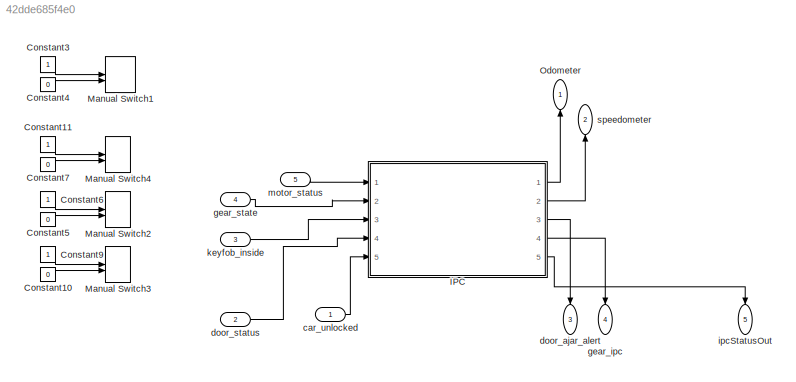
MODEL slx_42dde685f4e0
KIND model
CONFIG AbsTol = auto
CONFIG EnableMultiTasking = off
CONFIG FixedStep = 0.1
CONFIG MaxStep = auto
CONFIG MinStep = auto
CONFIG RelTol = 1e-3
CONFIG SampleTimeConstraint = Unconstrained
CONFIG Solver = FixedStepAuto
CONFIG SolverName = FixedStepAuto
CONFIG StartTime = 0.0
CONFIG StopTime = 10
BLOCK [Constant] Constant10
  Commented = on
  Value = 0
BLOCK [Constant] Constant11
  Commented = on
BLOCK [Constant] Constant3
  Commented = on
BLOCK [Constant] Constant4
  Commented = on
  Value = 0
BLOCK [Constant] Constant5
  Commented = on
  Value = 0
BLOCK [Constant] Constant6
  Commented = on
BLOCK [Constant] Constant7
  Commented = on
  Value = 0
BLOCK [Constant] Constant9
  Commented = on
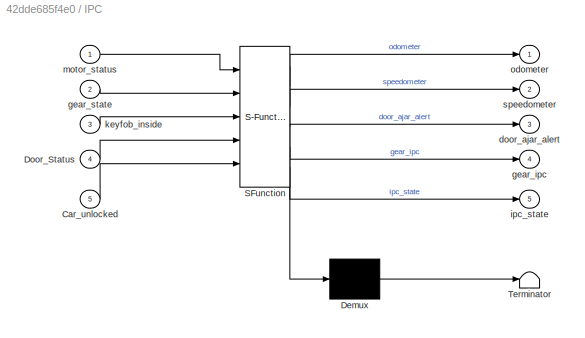
BLOCK [SubSystem] IPC
  ErrorFcn = Stateflow.Translate.translate
  PermitHierarchicalResolution = ExplicitOnly
  Ports = [5, 5]
  RequestExecContextInheritance = off
  SFBlockType = Chart
  TreatAsAtomicUnit = on
BLOCK [Demux] IPC/ Demux 
  Outputs = 1
  Ports = [1, 1]
BLOCK [S-Function] IPC/ SFunction 
  EnableBusSupport = on
  FunctionName = sf_sfun
  PortCounts = [5 6]
  Ports = [5, 6]
  SFcnIsStateOwnerBlock = off
  SFunctionDeploymentMode = off
  Tag = Stateflow S-Function 3
BLOCK [Terminator] IPC/ Terminator 
BLOCK [Inport] IPC/Car_unlocked
  IconDisplay = Port number
  Port = 5
BLOCK [Inport] IPC/Door_Status
  IconDisplay = Port number
  Port = 4
BLOCK [Outport] IPC/door_ajar_alert
  IconDisplay = Port number
  Port = 3
BLOCK [Outport] IPC/gear_ipc
  IconDisplay = Port number
  Port = 4
BLOCK [Inport] IPC/gear_state
  IconDisplay = Port number
  Port = 2
BLOCK [Outport] IPC/ipc_state
  IconDisplay = Port number
  Port = 5
BLOCK [Inport] IPC/keyfob_inside
  IconDisplay = Port number
  Port = 3
BLOCK [Inport] IPC/motor_status
  IconDisplay = Port number
BLOCK [Outport] IPC/odometer
  IconDisplay = Port number
BLOCK [Outport] IPC/speedometer
  IconDisplay = Port number
  Port = 2
BLOCK [ManualSwitch] Manual Switch1
  Commented = on
BLOCK [ManualSwitch] Manual Switch2
  Commented = on
  CurrentSetting = 0
BLOCK [ManualSwitch] Manual Switch3
  Commented = on
  CurrentSetting = 0
BLOCK [ManualSwitch] Manual Switch4
  Commented = on
BLOCK [Outport] Odometer
  IconDisplay = Port number
BLOCK [Inport] car_unlocked
  IconDisplay = Port number
BLOCK [Outport] door_ajar_alert
  IconDisplay = Port number
  Port = 3
BLOCK [Inport] door_status
  IconDisplay = Port number
  Port = 2
BLOCK [Outport] gear_ipc
  IconDisplay = Port number
  Port = 4
BLOCK [Inport] gear_state
  IconDisplay = Port number
  Port = 4
BLOCK [Outport] ipcStatusOut
  IconDisplay = Port number
  Port = 5
BLOCK [Inport] keyfob_inside
  IconDisplay = Port number
  Port = 3
BLOCK [Inport] motor_status
  IconDisplay = Port number
  Port = 5
BLOCK [Outport] speedometer
  IconDisplay = Port number
  Port = 2
LINE Constant10:1 -> Manual Switch3:2
LINE Constant11:1 -> Manual Switch4:1
LINE Constant3:1 -> Manual Switch1:1
LINE Constant4:1 -> Manual Switch1:2
LINE Constant5:1 -> Manual Switch2:2
LINE Constant6:1 -> Manual Switch2:1
LINE Constant7:1 -> Manual Switch4:2
LINE Constant9:1 -> Manual Switch3:1
LINE IPC:1 -> Odometer:1
LINE IPC:2 -> speedometer:1
LINE IPC:3 -> door_ajar_alert:1
LINE IPC:4 -> gear_ipc:1
LINE IPC:5 -> ipcStatusOut:1
LINE car_unlocked:1 -> IPC:5
LINE door_status:1 -> IPC:4
LINE gear_state:1 -> IPC:2
LINE keyfob_inside:1 -> IPC:3
LINE motor_status:1 -> IPC:1
CHART IPC states=11 transitions=8
  STATE_LABEL 'door_lock_and_closed\n\nentry:\ngear_ipc=0;% marcha do carro em default\ndoor_ajar_alert=0 %led de alerta desligado\nlock_unlock=0; %porta trancada\nipc_state=0;      %painel desligado\nspeedometer=0;%speedomer na origem\nodometer=0; %odometer na origem\n%motor_status=0;%motor não está operando\nduring:\nif(motor_status==0 )%se motor desligado\n    if (Door_Status==1&&Car_unlocked==0) %se porta aberta e destr...<+203ch>'
  STATE_LABEL '<!DOCTYPE HTML PUBLIC "-//W3C//DTD HTML 4.0//EN" "http://www.w3.org/TR/REC-html40/strict.dtd">\n<html><head><meta name="qrichtext" content="1" /><style type="text/css">\np, li { white-space: pre-wrap; }\n</style></head><body align="left" style=" font-family:\'Helvetica\'; font-size:12px; font-weight:400; font-style:normal;">\n<p align="left" style=" margin-top:0px; margin-bottom:0px; margin-left:0px; ma...<+224ch>'
  STATE_LABEL 'door_unlock_and_open\n\nentry:\nlock_unlock=1;\nduring:\nif (Door_Status==1 )\n    if (keyfob_inside==1)\n        ipc_state=1;\n    else\n        ipc_state=0;\n    end\n    %gear_ipc=gear_state%status da marcha do carro\n    door_ajar_alert=1;\nelseif (Door_Status==0)\n    door_ajar_alert=0;\n    if (keyfob_inside==1)\n        ipc_state=1;\n    else\n        ipc_state=0;\n    end\nend\n'
  STATE_LABEL '<!DOCTYPE HTML PUBLIC "-//W3C//DTD HTML 4.0//EN" "http://www.w3.org/TR/REC-html40/strict.dtd">\n<html><head><meta name="qrichtext" content="1" /><style type="text/css">\np, li { white-space: pre-wrap; }\n</style></head><body align="left" style=" font-family:\'Helvetica\'; font-size:12px; font-weight:400; font-style:normal;">\n<p align="left" style=" margin-top:0px; margin-bottom:0px; margin-left:0px; ma...<+243ch>'
  STATE_LABEL 'SWEEP_ON\n\nen,du:\nif (cont==22)\n    odometer=odometer+1;\n    cont=1;\nend\nspeedometer=speedometer+1;\ncont=cont+1;\ngear_ipc=gear_state%status da marcha do carro\non after (500,msec):\nexit:\ncont=1;'
  STATE_LABEL 'wellcome_and_panel_indicators_on\n\nentry:\nipc_state=1; %painel ligado\n%gear_ipc=gear_state%status da marcha do carro\nspeedometer=0;%speedomer na origem\nodometer=0; %odometer na origem\n%motor_status=1;\nexit:\ncont=1;\n'
  STATE_LABEL '<!DOCTYPE HTML PUBLIC "-//W3C//DTD HTML 4.0//EN" "http://www.w3.org/TR/REC-html40/strict.dtd">\n<html><head><meta name="qrichtext" content="1" /><style type="text/css">\np, li { white-space: pre-wrap; }\n</style></head><body align="left" style=" font-family:\'Helvetica\'; font-size:12px; font-weight:400; font-style:normal;">\n<p align="left" style=" margin-top:0px; margin-bottom:0px; margin-left:0px; ma...<+256ch>'
  STATE_LABEL '<!DOCTYPE HTML PUBLIC "-//W3C//DTD HTML 4.0//EN" "http://www.w3.org/TR/REC-html40/strict.dtd">\n<html><head><meta name="qrichtext" content="1" /><style type="text/css">\np, li { white-space: pre-wrap; }\n</style></head><body align="left" style=" font-family:\'Helvetica\'; font-size:12px; font-weight:400; font-style:normal;">\n<p align="left" style=" margin-top:0px; margin-bottom:0px; margin-left:0px; ma...<+201ch>'
  STATE_LABEL 'SWEEP_OFF\n\nen,du:\nif (cont==22)\n    odometer=odometer-1;\n    cont=1;\nend\nspeedometer=speedometer-1;\ncont=cont+1;\ngear_ipc=gear_state;%status da marcha do carro\non after (500,msec):\n'
  STATE_LABEL 'IPC_DRIVING\nen,du:\ngear_ipc=gear_state%status da marcha do carro\nspeedometer=0;\nodometer=2;\nif (Door_Status==1) %se porta aberta e destravada\n    ipc_state=1;  %liga o painel\n    door_ajar_alert=1;  %liga led de alerta\nelseif (Door_Status==0) %se porta fechada\n    door_ajar_alert=0; %n liga led de alerta\nend\n'
  STATE_LABEL '<!DOCTYPE HTML PUBLIC "-//W3C//DTD HTML 4.0//EN" "http://www.w3.org/TR/REC-html40/strict.dtd">\n<html><head><meta name="qrichtext" content="1" /><style type="text/css">\np, li { white-space: pre-wrap; }\n</style></head><body align="left" style=" font-family:\'Helvetica\'; font-size:12px; font-weight:400; font-style:normal;">\n<p align="left" style=" margin-top:0px; margin-bottom:0px; margin-left:0px; ma...<+207ch>'
